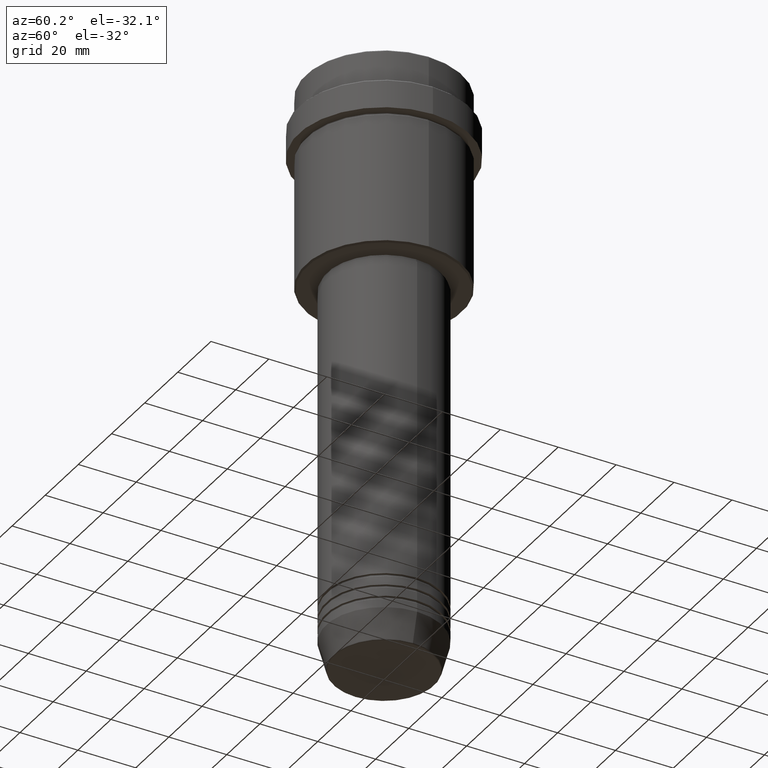
[diagram: clean part render]
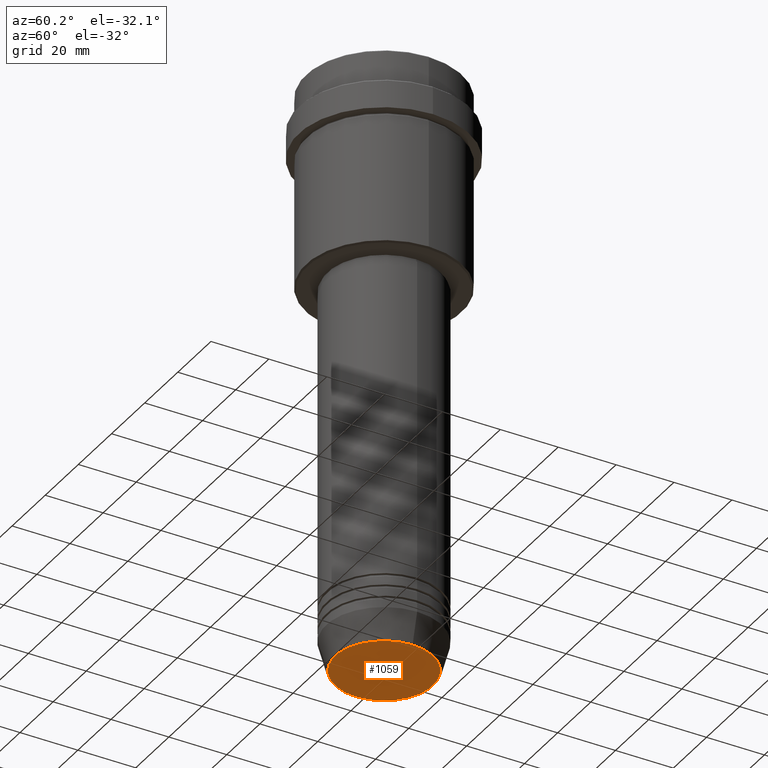
[diagram: same view with one face highlighted and labeled with its STEP entity id]
A machine part, auxiliary view. The second image highlights one B-rep face of the part: STEP entity #1059.
In plain terms, the highlighted planar face has unit normal (0, -0, 1).
Its self-contained STEP definition (entity closure, byte-faithful):
#98 = VERTEX_POINT ( 'NONE', #730 ) ;
#99 = DIRECTION ( 'NONE',  ( 0.000000000000000000, -0.000000000000000000, 1.000000000000000000 ) ) ;
#120 = FACE_OUTER_BOUND ( 'NONE', #597, .T. ) ;
#154 = AXIS2_PLACEMENT_3D ( 'NONE', #966, #960, #1395 ) ;
#350 = DIRECTION ( 'NONE',  ( 1.000000000000000000, 0.000000000000000000, 0.000000000000000000 ) ) ;
#415 = CARTESIAN_POINT ( 'NONE',  ( -16.93684458169928675, 2.103738199747889592E-15, -203.0000000000000000 ) ) ;
#466 = CARTESIAN_POINT ( 'NONE',  ( 0.000000000000000000, 0.000000000000000000, -203.0000000000000000 ) ) ;
#535 = ORIENTED_EDGE ( 'NONE', *, *, #1333, .T. ) ;
#570 = AXIS2_PLACEMENT_3D ( 'NONE', #604, #1038, #1132 ) ;
#597 = EDGE_LOOP ( 'NONE', ( #535, #788 ) ) ;
#604 = CARTESIAN_POINT ( 'NONE',  ( 0.000000000000000000, 0.000000000000000000, -203.0000000000000000 ) ) ;
#730 = CARTESIAN_POINT ( 'NONE',  ( 16.93684458169928675, 0.000000000000000000, -203.0000000000000000 ) ) ;
#788 = ORIENTED_EDGE ( 'NONE', *, *, #1242, .T. ) ;
#946 = VERTEX_POINT ( 'NONE', #415 ) ;
#960 = DIRECTION ( 'NONE',  ( 0.000000000000000000, 0.000000000000000000, -1.000000000000000000 ) ) ;
#966 = CARTESIAN_POINT ( 'NONE',  ( 0.000000000000000000, 0.000000000000000000, -203.0000000000000000 ) ) ;
#1026 = CIRCLE ( 'NONE', #154, 16.93684458169928675 ) ;
#1038 = DIRECTION ( 'NONE',  ( 0.000000000000000000, 0.000000000000000000, -1.000000000000000000 ) ) ;
#1059 = ADVANCED_FACE ( 'NONE', ( #120 ), #1087, .F. ) ;
#1087 = PLANE ( 'NONE',  #1336 ) ;
#1132 = DIRECTION ( 'NONE',  ( 1.000000000000000000, 0.000000000000000000, 0.000000000000000000 ) ) ;
#1183 = CIRCLE ( 'NONE', #570, 16.93684458169928675 ) ;
#1242 = EDGE_CURVE ( 'NONE', #946, #98, #1183, .T. ) ;
#1333 = EDGE_CURVE ( 'NONE', #98, #946, #1026, .T. ) ;
#1336 = AXIS2_PLACEMENT_3D ( 'NONE', #466, #99, #350 ) ;
#1395 = DIRECTION ( 'NONE',  ( 1.000000000000000000, 0.000000000000000000, 0.000000000000000000 ) ) ;